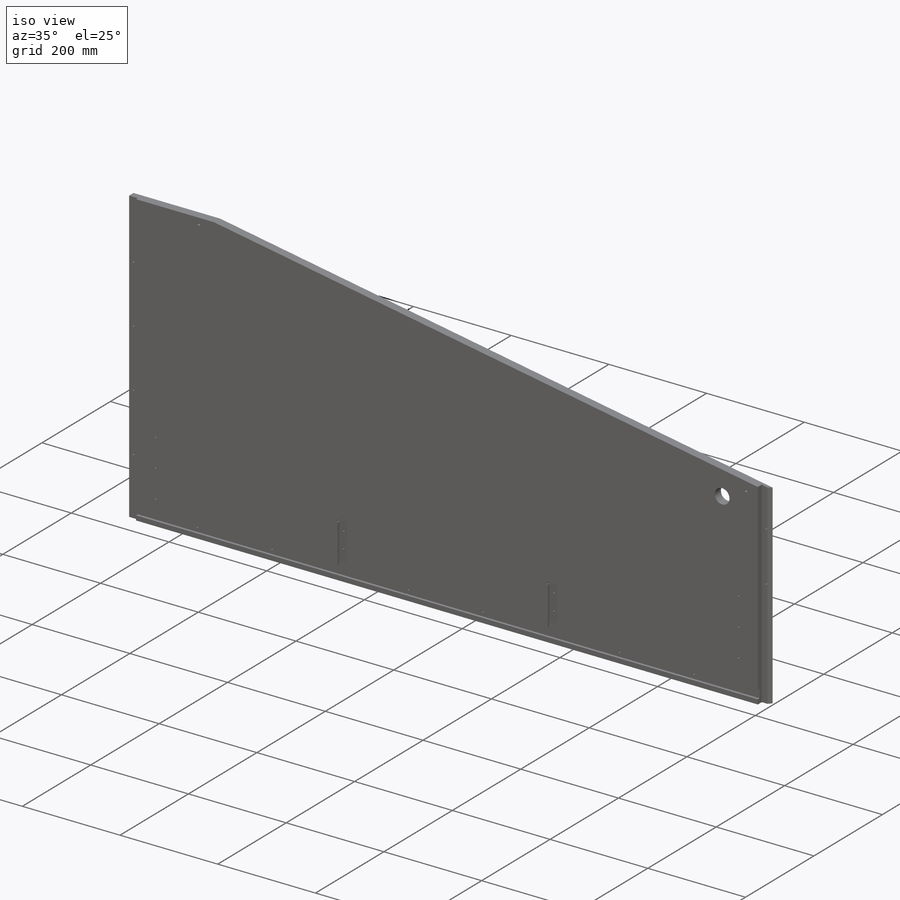
[diagram: iso view]
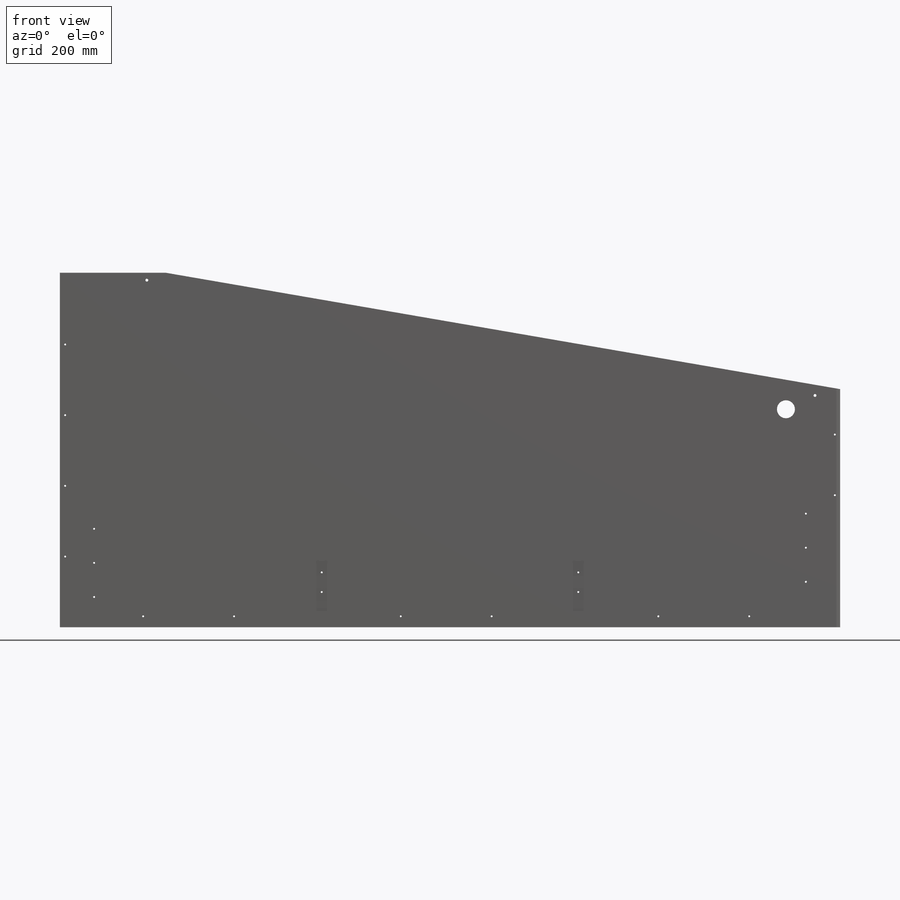
[diagram: front view]
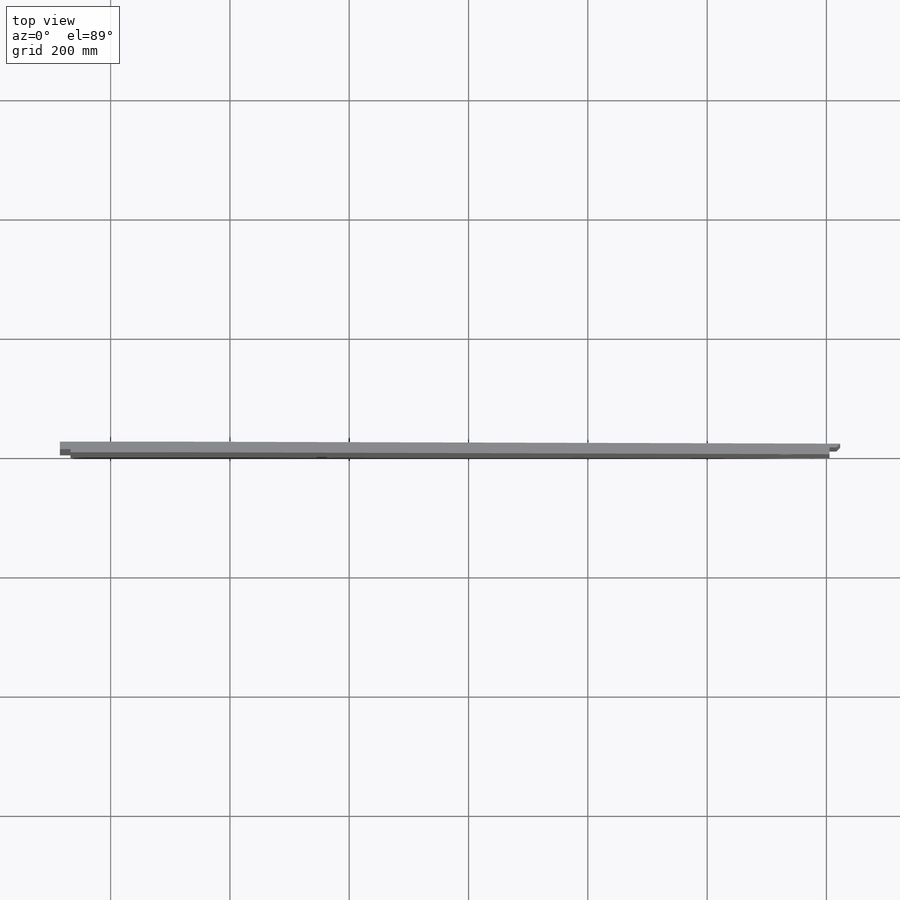
[diagram: top view]
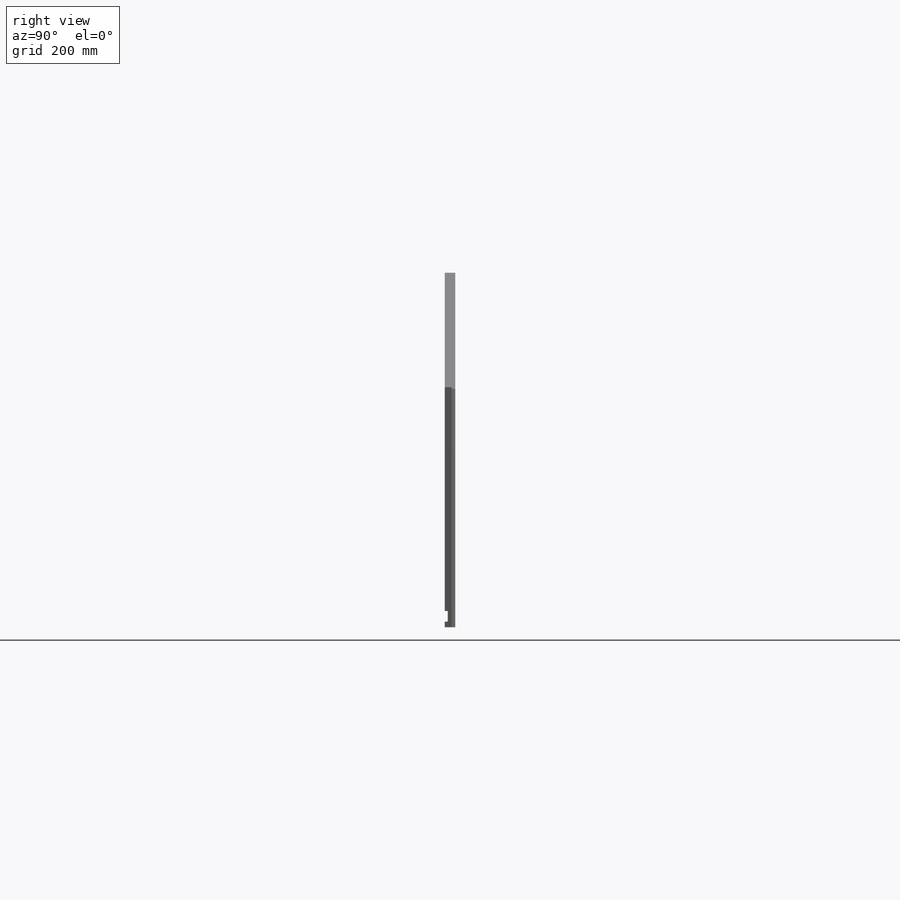
[diagram: right view]
SOLIDWORKS PART (.sldprt)
format: sldprt  version: not decoded by parser v0  size: 2,740,736 bytes
history: native  units: mm
features: sketch x10, cut_extrude x8, material x1, extrude x1 + 1 further entry (+15 scaffold rows collapsed)
feature tree (36):
  scaffold x15  (default folders/planes/origin — collapsed)
  material  "Maple"
  "Design Table"
  sketch  "Sketch1"
  sketch  "CabSideRight_Outline"  dims[SideRight_Lendgth=1308.1mm SideRight_Front=~399.25625mm SideRight_BackHeight=594.36mm SideRight_SlopeLength=1147.445mm]
  extrude  "CabSideRight_Thickness"  Depth=17.78mm
  sketch  "CabSideRight_LedgeCuts"  dims[BackThickness_2=17.78mm BackThickness_1=17.78mm BraceThickness_1=17.78mm BraceThickness_2=17.78mm BottomThickness=17.78mm]
  cut_extrude  "LedgeCuts_Depth"  Depth=5.08mm
  sketch  "Sketch9"  dims[c1.D1=~2.245064mm c2.D1=45.0deg c2.D2=3.175mm c2.D3=~2.245064mm c3.D3=45.0deg c3.D4=3.175mm c3.D5=3.175mm c4.D5=45.0deg c4.D6=3.175mm c4.D7=~2.245064mm c5.D7=45.0deg c6.D7=3.175mm c6.D8=3.175mm c7.D8=45.0deg]
  cut_extrude  "Cut-Extrude4"  Depth=5.08mm
  sketch  "Sketch10"  dims[D1=~7.739148mm]
  cut_extrude  "Cut-Extrude5"  [1 undecoded]
  sketch  "FrontLedgeCut"  dims[FrontThickness=17.78mm]
  cut_extrude  "FrontLedgeCut_Thickness"  Depth=11.43mm
  sketch  "FrontBevelAngleCut"  dims[c1.FrontBevel_Thickness=17.78mm c1.FrontBevel_Depth=17.78mm c1.D3=~8.980256mm c2.D3=45.0deg c2.D4=6.35mm]
  cut_extrude  "Cut-Extrude8"  [1 undecoded]
  sketch  "Sketch15"
  cut_extrude  "Cut-Extrude9"  [1 undecoded]
  sketch  "Sketch16"
  cut_extrude  "Cut-Extrude10"  Depth=12.7mm
  sketch  "Sketch17"  dims[D1=7.1755mm]
  cut_extrude  "Cut-Extrude11"  Depth=76.2mm
decode coverage: 13 of 19 modeling features carry decoded parameters; 1 rows unclassified (native names shown)
note: ~ marks probable driven/reference dimensions
note: 3 parameter values undecoded
summary: no parameter record found for 3 features
note: suppression state not decoded; provenance and decode notes live in map.json
